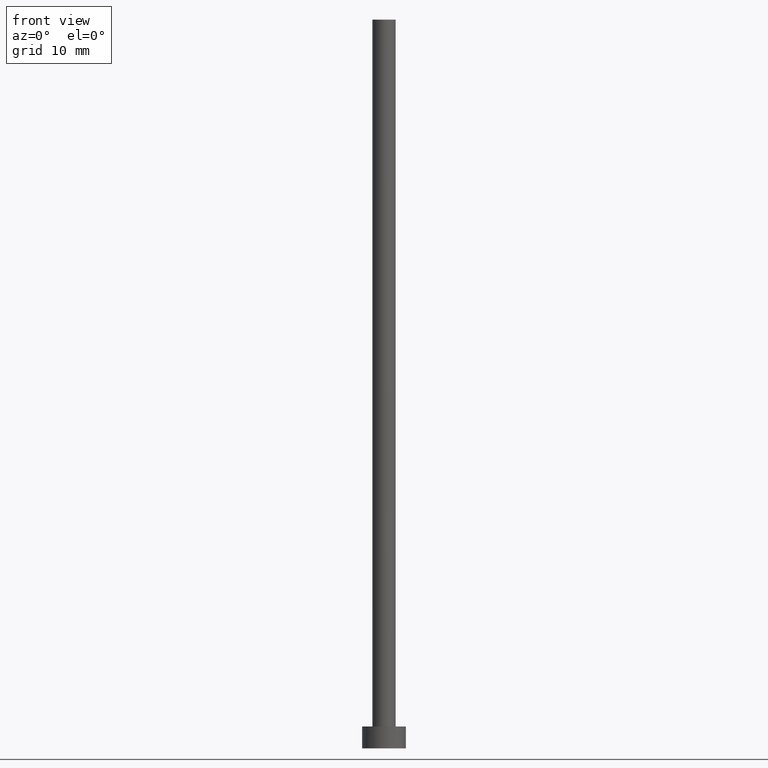
[diagram: clean part render]
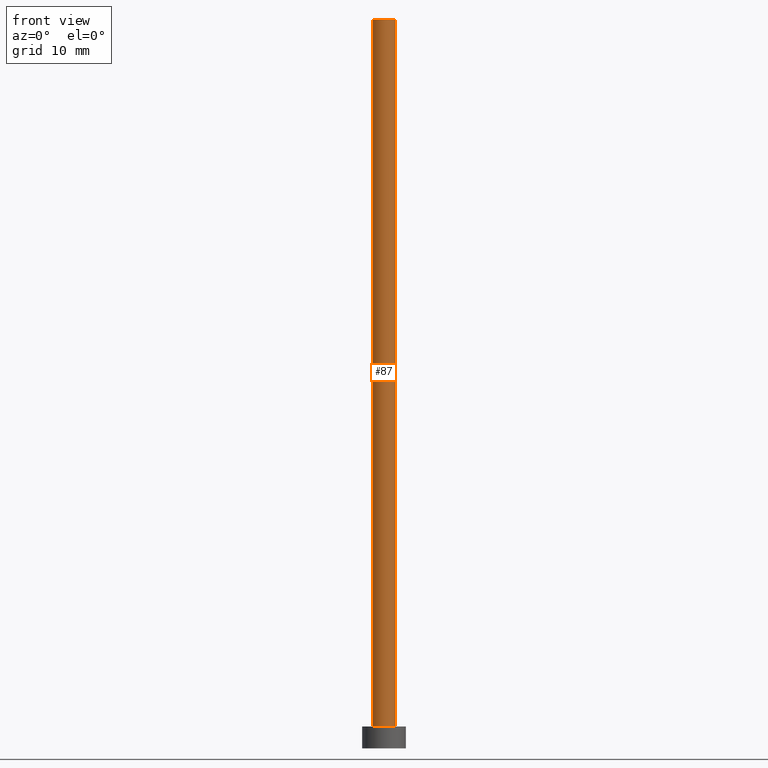
[diagram: same view with one face highlighted and labeled with its STEP entity id]
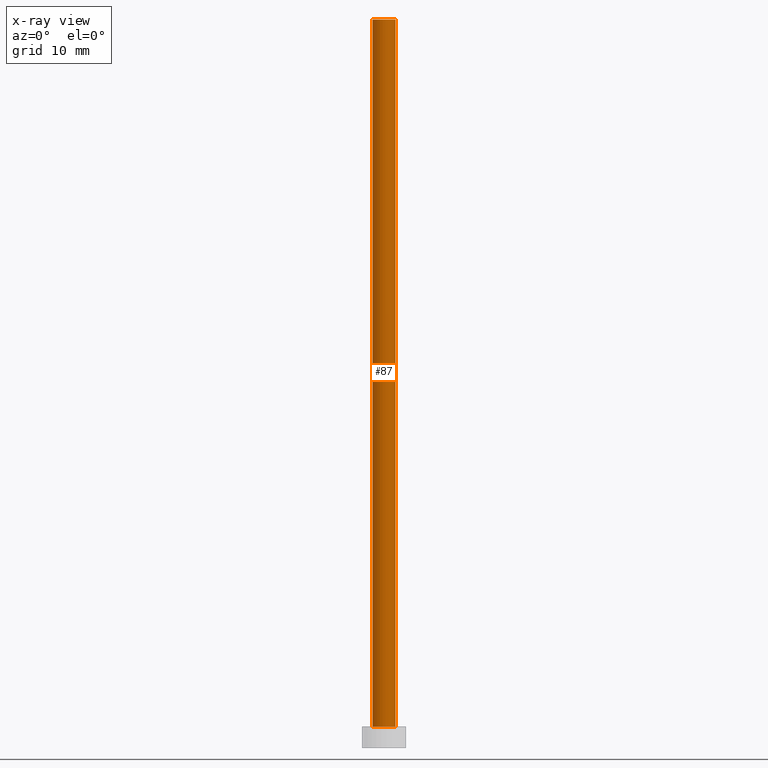
[diagram: x-ray of the same camera — body ghosted, the highlighted face saturated]
A machine part, front view. The second image highlights one B-rep face of the part: STEP entity #87.
The next image is the same camera in x-ray: the body ghosted, the highlighted face saturated — about 0% of this face is hidden behind the body in this view.
In plain terms, the highlighted cylindrical surface (edge-blend (fillet) strip) has radius 1.6 mm, axis along (-0, -0, -1).
Its self-contained STEP definition (entity closure, byte-faithful):
#4 = EDGE_CURVE ( 'NONE', #202, #150, #39, .T. ) ;
#5 = CARTESIAN_POINT ( 'NONE',  ( 1.600000000000000089, 1.959434878635764737E-16, 100.0000000000000000 ) ) ;
#24 = AXIS2_PLACEMENT_3D ( 'NONE', #79, #115, #233 ) ;
#28 = VECTOR ( 'NONE', #81, 1000.000000000000000 ) ;
#39 = LINE ( 'NONE', #179, #111 ) ;
#57 = AXIS2_PLACEMENT_3D ( 'NONE', #117, #156, #83 ) ;
#59 = CARTESIAN_POINT ( 'NONE',  ( 1.600000000000000089, 1.959434878635764737E-16, 3.000000000000000000 ) ) ;
#64 = EDGE_CURVE ( 'NONE', #219, #94, #230, .T. ) ;
#72 = CIRCLE ( 'NONE', #57, 1.600000000000000089 ) ;
#77 = AXIS2_PLACEMENT_3D ( 'NONE', #232, #180, #122 ) ;
#78 = FACE_OUTER_BOUND ( 'NONE', #176, .T. ) ;
#79 = CARTESIAN_POINT ( 'NONE',  ( 0.000000000000000000, 0.000000000000000000, 100.0000000000000000 ) ) ;
#81 = DIRECTION ( 'NONE',  ( -0.000000000000000000, -0.000000000000000000, -1.000000000000000000 ) ) ;
#83 = DIRECTION ( 'NONE',  ( 1.000000000000000000, 0.000000000000000000, 0.000000000000000000 ) ) ;
#87 = ADVANCED_FACE ( 'NONE', ( #78 ), #177, .T. ) ;
#94 = VERTEX_POINT ( 'NONE', #210 ) ;
#101 = CARTESIAN_POINT ( 'NONE',  ( -1.600000000000000089, 0.000000000000000000, 100.0000000000000000 ) ) ;
#111 = VECTOR ( 'NONE', #161, 1000.000000000000000 ) ;
#115 = DIRECTION ( 'NONE',  ( 0.000000000000000000, 0.000000000000000000, 1.000000000000000000 ) ) ;
#117 = CARTESIAN_POINT ( 'NONE',  ( 0.000000000000000000, 0.000000000000000000, 3.000000000000000000 ) ) ;
#118 = CARTESIAN_POINT ( 'NONE',  ( -1.600000000000000089, 0.000000000000000000, 100.0000000000000000 ) ) ;
#122 = DIRECTION ( 'NONE',  ( -1.000000000000000000, 0.000000000000000000, 0.000000000000000000 ) ) ;
#132 = CIRCLE ( 'NONE', #24, 1.600000000000000089 ) ;
#136 = EDGE_CURVE ( 'NONE', #219, #202, #132, .T. ) ;
#150 = VERTEX_POINT ( 'NONE', #59 ) ;
#156 = DIRECTION ( 'NONE',  ( 0.000000000000000000, 0.000000000000000000, 1.000000000000000000 ) ) ;
#161 = DIRECTION ( 'NONE',  ( -0.000000000000000000, -0.000000000000000000, -1.000000000000000000 ) ) ;
#167 = ORIENTED_EDGE ( 'NONE', *, *, #64, .T. ) ;
#176 = EDGE_LOOP ( 'NONE', ( #188, #236, #167, #229 ) ) ;
#177 = CYLINDRICAL_SURFACE ( 'NONE', #77, 1.600000000000000089 ) ;
#179 = CARTESIAN_POINT ( 'NONE',  ( 1.600000000000000089, 1.959434878635764737E-16, 100.0000000000000000 ) ) ;
#180 = DIRECTION ( 'NONE',  ( -0.000000000000000000, -0.000000000000000000, -1.000000000000000000 ) ) ;
#188 = ORIENTED_EDGE ( 'NONE', *, *, #4, .F. ) ;
#202 = VERTEX_POINT ( 'NONE', #5 ) ;
#210 = CARTESIAN_POINT ( 'NONE',  ( -1.600000000000000089, 0.000000000000000000, 3.000000000000000000 ) ) ;
#219 = VERTEX_POINT ( 'NONE', #101 ) ;
#229 = ORIENTED_EDGE ( 'NONE', *, *, #254, .T. ) ;
#230 = LINE ( 'NONE', #118, #28 ) ;
#232 = CARTESIAN_POINT ( 'NONE',  ( 0.000000000000000000, 0.000000000000000000, 100.0000000000000000 ) ) ;
#233 = DIRECTION ( 'NONE',  ( 1.000000000000000000, 0.000000000000000000, 0.000000000000000000 ) ) ;
#236 = ORIENTED_EDGE ( 'NONE', *, *, #136, .F. ) ;
#254 = EDGE_CURVE ( 'NONE', #94, #150, #72, .T. ) ;